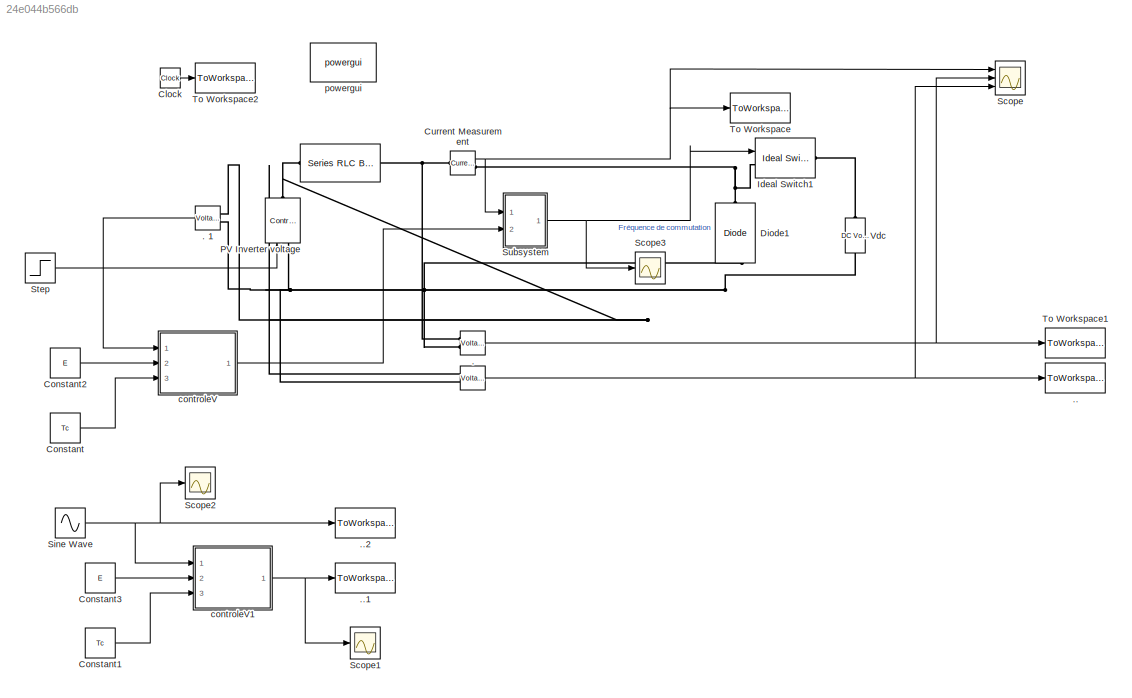
MODEL slx_24e044b566db
KIND model
CONFIG AbsTol = auto
CONFIG EnableMultiTasking = on
CONFIG FixedStep = pas_calcul
CONFIG MaxStep = auto
CONFIG MinStep = auto
CONFIG RelTol = 1e-3
CONFIG SampleTimeConstraint = Unconstrained
CONFIG Solver = ode1
CONFIG SolverName = ode1
CONFIG StartTime = 0.0
CONFIG StopTime = t_simul
BLOCK [Reference]     REF=powerlib/Elements/Series RLC Branch
  Ports = [0, 0, 0, 0, 0, 1, 1]
  SourceBlock = powerlib/Elements/Series RLC Branch
  SourceProductBaseCode = PS
  SourceProductName = Simscape Power Systems
  SourceType = Series RLC Branch
BLOCK [Reference]         REF=powerlib/Measurements/Voltage Measurement
  Ports = [0, 1, 0, 0, 0, 2]
  SourceBlock = powerlib/Measurements/Voltage Measurement
  SourceProductBaseCode = PS
  SourceProductName = Simscape Power Systems
  SourceType = Voltage Measurement
  UserDataPersistent = on
BLOCK [Reference] .     REF=powerlib/Measurements/Voltage Measurement
  Ports = [0, 1, 0, 0, 0, 2]
  SourceBlock = powerlib/Measurements/Voltage Measurement
  SourceProductBaseCode = PS
  SourceProductName = Simscape Power Systems
  SourceType = Voltage Measurement
  UserDataPersistent = on
BLOCK [Reference] .   1  REF=powerlib/Measurements/Voltage Measurement
  Ports = [0, 1, 0, 0, 0, 2]
  SourceBlock = powerlib/Measurements/Voltage Measurement
  SourceProductBaseCode = PS
  SourceProductName = Simscape Power Systems
  SourceType = Voltage Measurement
  UserDataPersistent = on
BLOCK [ToWorkspace] ..
  FixptAsFi = on
  MaxDataPoints = inf
  Ports = [1]
  SampleTime = -1
  Save2DSignal = 3-D array (concatenate along third dimension)
  VariableName = Vpv
BLOCK [ToWorkspace] ..1
  FixptAsFi = on
  MaxDataPoints = inf
  Ports = [1]
  SampleTime = -1
  Save2DSignal = 3-D array (concatenate along third dimension)
  VariableName = Ipv1
BLOCK [ToWorkspace] ..2
  FixptAsFi = on
  MaxDataPoints = inf
  Ports = [1]
  SampleTime = -1
  Save2DSignal = 3-D array (concatenate along third dimension)
  VariableName = Vpv1
BLOCK [Clock] Clock
  Decimation = 1
  DisplayTime = on
BLOCK [Constant] Constant
  SampleTime = -1
  Value = Tc
BLOCK [Constant] Constant1
  SampleTime = -1
  Value = Tc
BLOCK [Constant] Constant2
  SampleTime = -1
  Value = E
BLOCK [Constant] Constant3
  SampleTime = -1
  Value = E
BLOCK [Reference] Current Measurement  REF=powerlib/Measurements/Current Measurement
  Ports = [0, 1, 0, 0, 0, 1, 1]
  SourceBlock = powerlib/Measurements/Current Measurement
  SourceProductBaseCode = PS
  SourceProductName = Simscape Power Systems
  SourceType = Current Measurement
  UserDataPersistent = on
BLOCK [Reference] Diode1  REF=powerlib/Power
Electronics/Diode
  Ports = [0, 1, 0, 0, 0, 1, 1]
  SourceBlock = powerlib/Power\nElectronics/Diode
  SourceProductBaseCode = PS
  SourceProductName = Simscape Power Systems
  SourceType = Diode
BLOCK [Reference] Ideal Switch1  REF=powerlib/Power
Electronics/Ideal Switch
  Ports = [1, 0, 0, 0, 0, 1, 1]
  SourceBlock = powerlib/Power\nElectronics/Ideal Switch
  SourceProductBaseCode = PS
  SourceProductName = Simscape Power Systems
  SourceType = Ideal Switch
BLOCK [Reference] PV  Inverter voltage  REF=powerlib/Electrical
Sources/Controlled Voltage Source
  Ports = [1, 0, 0, 0, 0, 1, 1]
  SourceBlock = powerlib/Electrical\nSources/Controlled Voltage Source
  SourceProductBaseCode = PS
  SourceProductName = Simscape Power Systems
  SourceType = Controlled Voltage Source
BLOCK [Scope] Scope
  NumInputPorts = 3
  Ports = [3]
  ScopeSpecificationString = Simulink.scopes.TimeScopeBlockCfg('CurrentConfiguration', extmgr.ConfigurationSet(extmgr.Configuration('Core','General UI',true),extmgr.Configuration('Core','Source UI',true),extmgr.Configuration('Sources','WiredSimulink',true,'DataLoggingSaveFormat','Array','DataLoggingDecimation','1','DataLoggingDecimateData',true),extmgr.Configuration('Visuals','Time Domain',true,'SerializedDisplays',{struct('M...<+2902ch>
BLOCK [Scope] Scope1
  NumInputPorts = 1
  Ports = [1]
  ScopeSpecificationString = Simulink.scopes.TimeScopeBlockCfg('CurrentConfiguration', extmgr.ConfigurationSet(extmgr.Configuration('Core','General UI',true),extmgr.Configuration('Core','Source UI',true),extmgr.Configuration('Sources','WiredSimulink',true,'DataLoggingVariableName','ScopeData3'),extmgr.Configuration('Visuals','Time Domain',true,'SerializedDisplays',{struct('MinYLimReal','-0.66749','MaxYLimReal','6.00745','YLab...<+1394ch>
BLOCK [Scope] Scope2
  NumInputPorts = 1
  Ports = [1]
  ScopeSpecificationString = Simulink.scopes.TimeScopeBlockCfg('CurrentConfiguration', extmgr.ConfigurationSet(extmgr.Configuration('Core','General UI',true),extmgr.Configuration('Core','Source UI',true),extmgr.Configuration('Sources','WiredSimulink',true,'DataLoggingVariableName','ScopeData2'),extmgr.Configuration('Visuals','Time Domain',true,'SerializedDisplays',{struct('MinYLimReal','-3.05033','MaxYLimReal','27.45299','YLa...<+1372ch>
BLOCK [Scope] Scope3
  NumInputPorts = 1
  Ports = [1]
  ScopeSpecificationString = Simulink.scopes.TimeScopeBlockCfg('CurrentConfiguration', extmgr.ConfigurationSet(extmgr.Configuration('Core','General UI',true),extmgr.Configuration('Core','Source UI',true),extmgr.Configuration('Sources','WiredSimulink',true,'DataLoggingVariableName','ScopeData1'),extmgr.Configuration('Visuals','Time Domain',true,'SerializedDisplays',{struct('MinYLimReal','-0.125','MaxYLimReal','1.125','YLabelRe...<+1398ch>
BLOCK [Sin] Sine Wave
  Amplitude = -VpvREF-10
  Frequency = 1/t_simul
  Phase = -pi
  Ports = [0, 1]
  SampleTime = 0
BLOCK [Step] Step
  After = 0.9*VpvREF
  Before = VpvREF
  SampleTime = 0
  Time = 0.05
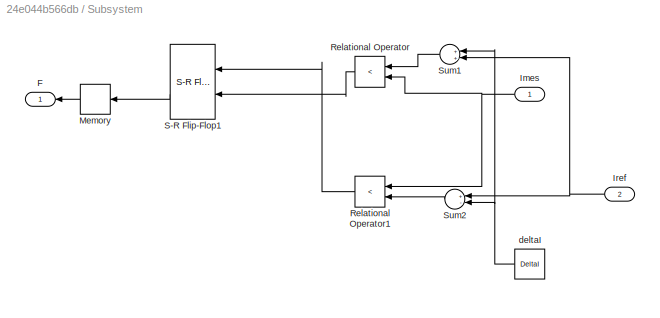
BLOCK [SubSystem] Subsystem
  Ports = [2, 1]
  RequestExecContextInheritance = off
  Variant = off
BLOCK [Outport] Subsystem/F
  IconDisplay = Port number
BLOCK [Inport] Subsystem/Imes
  IconDisplay = Port number
BLOCK [Inport] Subsystem/Iref
  IconDisplay = Port number
  Port = 2
BLOCK [Memory] Subsystem/Memory
  InheritSampleTime = on
BLOCK [RelationalOperator] Subsystem/Relational Operator
  InputSameDT = off
  Operator = <
  OutDataTypeStr = boolean
  Ports = [2, 1]
BLOCK [RelationalOperator] Subsystem/Relational Operator1
  InputSameDT = off
  Operator = <
  OutDataTypeStr = boolean
  Ports = [2, 1]
BLOCK [Reference] Subsystem/S-R Flip-Flop1  REF=simulink_extras/Flip Flops/S-R
Flip-Flop
  Ports = [2, 2]
  SourceBlock = simulink_extras/Flip Flops/S-R\nFlip-Flop
  SourceProductBaseCode = SL
  SourceProductName = Simulink
  SourceType = SRFlipFlop
BLOCK [Sum] Subsystem/Sum1
  InputSameDT = off
  OutDataTypeStr = Inherit: Inherit via internal rule
  Ports = [2, 1]
  SaturateOnIntegerOverflow = off
BLOCK [Sum] Subsystem/Sum2
  InputSameDT = off
  Inputs = +-
  OutDataTypeStr = Inherit: Inherit via internal rule
  Ports = [2, 1]
  SaturateOnIntegerOverflow = off
BLOCK [Constant] Subsystem/deltaI
  Value = DeltaI
BLOCK [ToWorkspace] To Workspace
  FixptAsFi = on
  MaxDataPoints = inf
  Ports = [1]
  SampleTime = -1
  Save2DSignal = 3-D array (concatenate along third dimension)
  VariableName = Ipv
BLOCK [ToWorkspace] To Workspace1
  FixptAsFi = on
  MaxDataPoints = inf
  Ports = [1]
  SampleTime = -1
  Save2DSignal = 3-D array (concatenate along third dimension)
  VariableName = Vm
BLOCK [ToWorkspace] To Workspace2
  FixptAsFi = on
  MaxDataPoints = inf
  Ports = [1]
  SampleTime = -1
  Save2DSignal = 3-D array (concatenate along third dimension)
  VariableName = t
BLOCK [Reference] Vdc  REF=powerlib/Electrical
Sources/DC Voltage Source
  Ports = [0, 0, 0, 0, 0, 1, 1]
  SourceBlock = powerlib/Electrical\nSources/DC Voltage Source
  SourceProductBaseCode = PS
  SourceProductName = Simscape Power Systems
  SourceType = DC Voltage Source
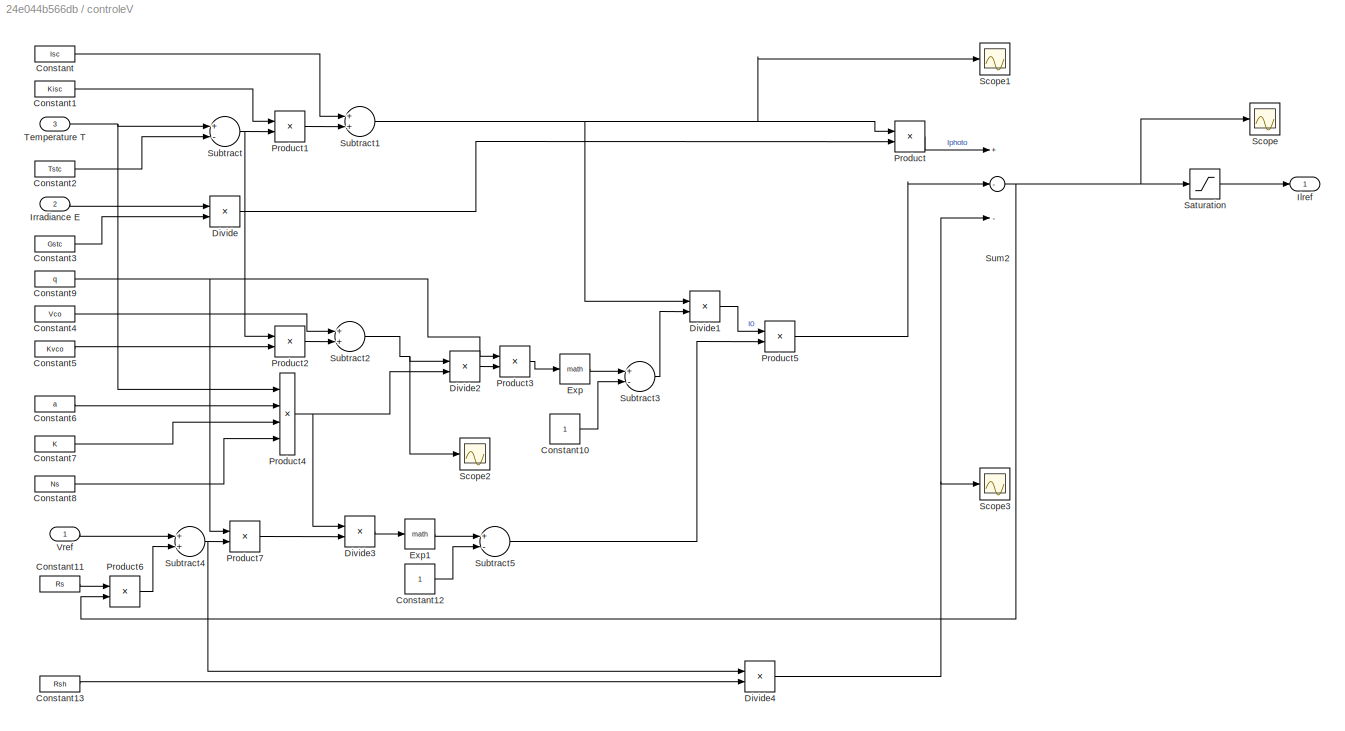
BLOCK [SubSystem] controleV
  Ports = [3, 1]
  RequestExecContextInheritance = off
  Variant = off
BLOCK [Constant] controleV/Constant
  SampleTime = -1
  Value = Isc
BLOCK [Constant] controleV/Constant1
  SampleTime = -1
  Value = Kisc
BLOCK [Constant] controleV/Constant10
  SampleTime = -1
BLOCK [Constant] controleV/Constant11
  SampleTime = -1
  Value = Rs
BLOCK [Constant] controleV/Constant12
  SampleTime = -1
BLOCK [Constant] controleV/Constant13
  SampleTime = -1
  Value = Rsh
BLOCK [Constant] controleV/Constant2
  SampleTime = -1
  Value = Tstc
BLOCK [Constant] controleV/Constant3
  SampleTime = -1
  Value = Gstc
BLOCK [Constant] controleV/Constant4
  SampleTime = -1
  Value = Vco
BLOCK [Constant] controleV/Constant5
  SampleTime = -1
  Value = Kvco
BLOCK [Constant] controleV/Constant6
  SampleTime = -1
  Value = a
BLOCK [Constant] controleV/Constant7
  SampleTime = -1
  Value = K
BLOCK [Constant] controleV/Constant8
  SampleTime = -1
  Value = Ns
BLOCK [Constant] controleV/Constant9
  SampleTime = -1
  Value = q
BLOCK [Product] controleV/Divide
  InputSameDT = off
  Inputs = */
  OutDataTypeStr = Inherit: Inherit via internal rule
  Ports = [2, 1]
  RndMeth = Floor
  SaturateOnIntegerOverflow = off
BLOCK [Product] controleV/Divide1
  InputSameDT = off
  Inputs = */
  OutDataTypeStr = Inherit: Inherit via internal rule
  Ports = [2, 1]
  RndMeth = Floor
  SaturateOnIntegerOverflow = off
BLOCK [Product] controleV/Divide2
  InputSameDT = off
  Inputs = */
  OutDataTypeStr = Inherit: Inherit via internal rule
  Ports = [2, 1]
  RndMeth = Floor
  SaturateOnIntegerOverflow = off
BLOCK [Product] controleV/Divide3
  InputSameDT = off
  Inputs = /*
  OutDataTypeStr = Inherit: Inherit via internal rule
  Ports = [2, 1]
  RndMeth = Floor
  SaturateOnIntegerOverflow = off
BLOCK [Product] controleV/Divide4
  InputSameDT = off
  Inputs = */
  OutDataTypeStr = Inherit: Inherit via internal rule
  Ports = [2, 1]
  RndMeth = Floor
  SaturateOnIntegerOverflow = off
BLOCK [Math] controleV/Exp
  Ports = [1, 1]
BLOCK [Math] controleV/Exp1
  Ports = [1, 1]
BLOCK [Outport] controleV/Ilref
  IconDisplay = Port number
BLOCK [Inport] controleV/Irradiance E
  IconDisplay = Port number
  Port = 2
BLOCK [Product] controleV/Product
  InputSameDT = off
  OutDataTypeStr = Inherit: Inherit via internal rule
  Ports = [2, 1]
  RndMeth = Floor
  SaturateOnIntegerOverflow = off
BLOCK [Product] controleV/Product1
  InputSameDT = off
  OutDataTypeStr = Inherit: Inherit via internal rule
  Ports = [2, 1]
  RndMeth = Floor
  SaturateOnIntegerOverflow = off
BLOCK [Product] controleV/Product2
  InputSameDT = off
  OutDataTypeStr = Inherit: Inherit via internal rule
  Ports = [2, 1]
  RndMeth = Floor
  SaturateOnIntegerOverflow = off
BLOCK [Product] controleV/Product3
  InputSameDT = off
  OutDataTypeStr = Inherit: Inherit via internal rule
  Ports = [2, 1]
  RndMeth = Floor
  SaturateOnIntegerOverflow = off
BLOCK [Product] controleV/Product4
  InputSameDT = off
  Inputs = 4
  OutDataTypeStr = Inherit: Inherit via internal rule
  Ports = [4, 1]
  RndMeth = Floor
  SaturateOnIntegerOverflow = off
BLOCK [Product] controleV/Product5
  InputSameDT = off
  OutDataTypeStr = Inherit: Inherit via internal rule
  Ports = [2, 1]
  RndMeth = Floor
  SaturateOnIntegerOverflow = off
BLOCK [Product] controleV/Product6
  InputSameDT = off
  OutDataTypeStr = Inherit: Inherit via internal rule
  Ports = [2, 1]
  RndMeth = Floor
  SaturateOnIntegerOverflow = off
BLOCK [Product] controleV/Product7
  InputSameDT = off
  OutDataTypeStr = Inherit: Inherit via internal rule
  Ports = [2, 1]
  RndMeth = Floor
  SaturateOnIntegerOverflow = off
BLOCK [Saturate] controleV/Saturation
  InputPortMap = u0
  LowerLimit = 0
  Ports = [1, 1]
  UpperLimit = 150
BLOCK [Scope] controleV/Scope
  NumInputPorts = 1
  Ports = [1]
  ScopeSpecificationString = Simulink.scopes.TimeScopeBlockCfg('CurrentConfiguration', extmgr.ConfigurationSet(extmgr.Configuration('Core','General UI',true),extmgr.Configuration('Core','Source UI',true),extmgr.Configuration('Sources','WiredSimulink',true,'DataLoggingVariableName','ScopeData1'),extmgr.Configuration('Visuals','Time Domain',true,'SerializedDisplays',{struct('MinYLimReal','-0.15983','MaxYLimReal','4.76439','YLab...<+1439ch>
BLOCK [Scope] controleV/Scope1
  NumInputPorts = 1
  Ports = [1]
  ScopeSpecificationString = Simulink.scopes.TimeScopeBlockCfg('CurrentConfiguration', extmgr.ConfigurationSet(extmgr.Configuration('Core','General UI',true),extmgr.Configuration('Core','Source UI',true),extmgr.Configuration('Sources','WiredSimulink',true,'DataLoggingVariableName','ScopeData3'),extmgr.Configuration('Visuals','Time Domain',true,'SerializedDisplays',{struct('MinYLimReal','2.56','MaxYLimReal','4.56','YLabelReal'...<+1371ch>
BLOCK [Scope] controleV/Scope2
  NumInputPorts = 1
  Ports = [1]
  ScopeSpecificationString = Simulink.scopes.TimeScopeBlockCfg('CurrentConfiguration', extmgr.ConfigurationSet(extmgr.Configuration('Core','General UI',true),extmgr.Configuration('Core','Source UI',true),extmgr.Configuration('Sources','WiredSimulink',true,'DataLoggingVariableName','ScopeData4'),extmgr.Configuration('Visuals','Time Domain',true,'SerializedDisplays',{struct('MinYLimReal','33.74','MaxYLimReal','53.74','YLabelRea...<+1451ch>
BLOCK [Scope] controleV/Scope3
  NumInputPorts = 1
  Ports = [1]
  ScopeSpecificationString = Simulink.scopes.TimeScopeBlockCfg('CurrentConfiguration', extmgr.ConfigurationSet(extmgr.Configuration('Core','General UI',true),extmgr.Configuration('Core','Source UI',true),extmgr.Configuration('Sources','WiredSimulink',true,'DataLoggingVariableName','ScopeData1'),extmgr.Configuration('Visuals','Time Domain',true,'SerializedDisplays',{struct('MinYLimReal','-0.000022015823873428','MaxYLimReal','-...<+1571ch>
BLOCK [Sum] controleV/Subtract
  InputSameDT = off
  Inputs = +-
  OutDataTypeStr = Inherit: Inherit via internal rule
  Ports = [2, 1]
  SaturateOnIntegerOverflow = off
BLOCK [Sum] controleV/Subtract1
  InputSameDT = off
  OutDataTypeStr = Inherit: Inherit via internal rule
  Ports = [2, 1]
  SaturateOnIntegerOverflow = off
BLOCK [Sum] controleV/Subtract2
  InputSameDT = off
  OutDataTypeStr = Inherit: Inherit via internal rule
  Ports = [2, 1]
  SaturateOnIntegerOverflow = off
BLOCK [Sum] controleV/Subtract3
  InputSameDT = off
  Inputs = +-
  OutDataTypeStr = Inherit: Inherit via internal rule
  Ports = [2, 1]
  SaturateOnIntegerOverflow = off
BLOCK [Sum] controleV/Subtract4
  InputSameDT = off
  OutDataTypeStr = Inherit: Inherit via internal rule
  Ports = [2, 1]
  SaturateOnIntegerOverflow = off
BLOCK [Sum] controleV/Subtract5
  InputSameDT = off
  Inputs = +-
  OutDataTypeStr = Inherit: Inherit via internal rule
  Ports = [2, 1]
  SaturateOnIntegerOverflow = off
BLOCK [Sum] controleV/Sum2
  Inputs = +--
  Ports = [3, 1]
BLOCK [Inport] controleV/Temperature T
  IconDisplay = Port number
  Port = 3
BLOCK [Inport] controleV/Vref 
  IconDisplay = Port number
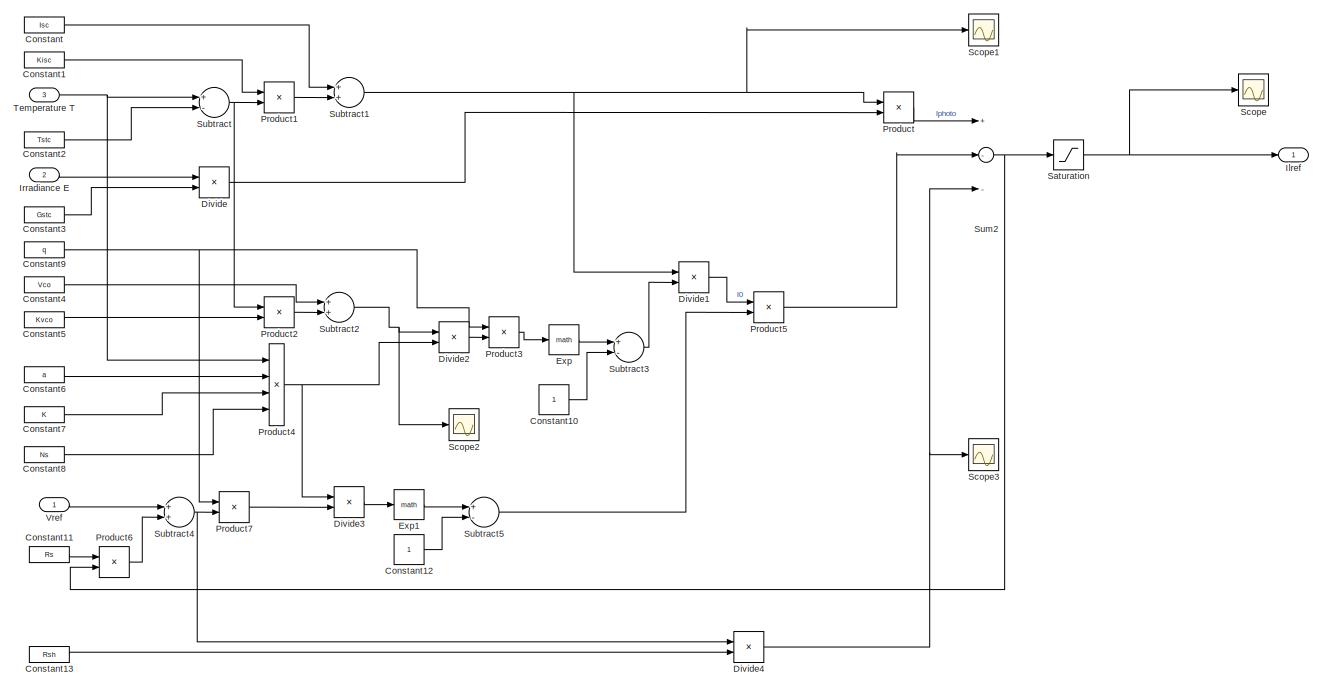
[diagram: controleV1 - part 1/2, most of the canvas]
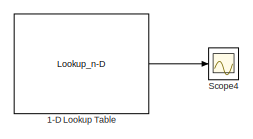
[diagram: controleV1 - part 2/2, top left region]
BLOCK [SubSystem] controleV1
  Ports = [3, 1]
  RequestExecContextInheritance = off
  Variant = off
BLOCK [Lookup_n-D] controleV1/1-D Lookup Table
  BreakpointsForDimension1 = [0,0.0024,0.0048,0.0072,0.0096,0.012,0.0144,0.0168,0.0192,0.0216,0.024,0.0264,0.0288,0.0312,0.0336,0.036,0.0384,0.0406,0.0432,0.0456,0.048,0.0504,0.0528,0.0552,0.0576,0.06,0.0624,0.0648,0.0672,0.0696,0.072,0.0744,0.0768,0.0792,0.0816,0.084,0.0864,0.0888,0.0912,0.0936,0.096,0.1]
  InternalRulePriority = Speed
  NumberOfTableDimensions = 1
  Ports = [1, 1]
  RndMeth = Simplest
  Table = [0,0.5,1,1.5,2,2.5,3,3.5,4,4.5,5,5.5,6,6.5,7,7.5,8,8.5,9,9.5,10,10.5,11,11.5,12,12.5,13,13.5,14,14.5,15,15.5,16,16.5,17,17.5,18,18.5,19,19.5,20,20.5]
BLOCK [Constant] controleV1/Constant
  SampleTime = -1
  Value = Isc
BLOCK [Constant] controleV1/Constant1
  SampleTime = -1
  Value = Kisc
BLOCK [Constant] controleV1/Constant10
  SampleTime = -1
BLOCK [Constant] controleV1/Constant11
  SampleTime = -1
  Value = Rs
BLOCK [Constant] controleV1/Constant12
  SampleTime = -1
BLOCK [Constant] controleV1/Constant13
  SampleTime = -1
  Value = Rsh
BLOCK [Constant] controleV1/Constant2
  SampleTime = -1
  Value = Tstc
BLOCK [Constant] controleV1/Constant3
  SampleTime = -1
  Value = Gstc
BLOCK [Constant] controleV1/Constant4
  SampleTime = -1
  Value = Vco
BLOCK [Constant] controleV1/Constant5
  SampleTime = -1
  Value = Kvco
BLOCK [Constant] controleV1/Constant6
  SampleTime = -1
  Value = a
BLOCK [Constant] controleV1/Constant7
  SampleTime = -1
  Value = K
BLOCK [Constant] controleV1/Constant8
  SampleTime = -1
  Value = Ns
BLOCK [Constant] controleV1/Constant9
  SampleTime = -1
  Value = q
BLOCK [Product] controleV1/Divide
  InputSameDT = off
  Inputs = */
  OutDataTypeStr = Inherit: Inherit via internal rule
  Ports = [2, 1]
  RndMeth = Floor
  SaturateOnIntegerOverflow = off
BLOCK [Product] controleV1/Divide1
  InputSameDT = off
  Inputs = */
  OutDataTypeStr = Inherit: Inherit via internal rule
  Ports = [2, 1]
  RndMeth = Floor
  SaturateOnIntegerOverflow = off
BLOCK [Product] controleV1/Divide2
  InputSameDT = off
  Inputs = */
  OutDataTypeStr = Inherit: Inherit via internal rule
  Ports = [2, 1]
  RndMeth = Floor
  SaturateOnIntegerOverflow = off
BLOCK [Product] controleV1/Divide3
  InputSameDT = off
  Inputs = /*
  OutDataTypeStr = Inherit: Inherit via internal rule
  Ports = [2, 1]
  RndMeth = Floor
  SaturateOnIntegerOverflow = off
BLOCK [Product] controleV1/Divide4
  InputSameDT = off
  Inputs = */
  OutDataTypeStr = Inherit: Inherit via internal rule
  Ports = [2, 1]
  RndMeth = Floor
  SaturateOnIntegerOverflow = off
BLOCK [Math] controleV1/Exp
  Ports = [1, 1]
BLOCK [Math] controleV1/Exp1
  Ports = [1, 1]
BLOCK [Outport] controleV1/Ilref
  IconDisplay = Port number
BLOCK [Inport] controleV1/Irradiance E
  IconDisplay = Port number
  Port = 2
BLOCK [Product] controleV1/Product
  InputSameDT = off
  OutDataTypeStr = Inherit: Inherit via internal rule
  Ports = [2, 1]
  RndMeth = Floor
  SaturateOnIntegerOverflow = off
BLOCK [Product] controleV1/Product1
  InputSameDT = off
  OutDataTypeStr = Inherit: Inherit via internal rule
  Ports = [2, 1]
  RndMeth = Floor
  SaturateOnIntegerOverflow = off
BLOCK [Product] controleV1/Product2
  InputSameDT = off
  OutDataTypeStr = Inherit: Inherit via internal rule
  Ports = [2, 1]
  RndMeth = Floor
  SaturateOnIntegerOverflow = off
BLOCK [Product] controleV1/Product3
  InputSameDT = off
  OutDataTypeStr = Inherit: Inherit via internal rule
  Ports = [2, 1]
  RndMeth = Floor
  SaturateOnIntegerOverflow = off
BLOCK [Product] controleV1/Product4
  InputSameDT = off
  Inputs = 4
  OutDataTypeStr = Inherit: Inherit via internal rule
  Ports = [4, 1]
  RndMeth = Floor
  SaturateOnIntegerOverflow = off
BLOCK [Product] controleV1/Product5
  InputSameDT = off
  OutDataTypeStr = Inherit: Inherit via internal rule
  Ports = [2, 1]
  RndMeth = Floor
  SaturateOnIntegerOverflow = off
BLOCK [Product] controleV1/Product6
  InputSameDT = off
  OutDataTypeStr = Inherit: Inherit via internal rule
  Ports = [2, 1]
  RndMeth = Floor
  SaturateOnIntegerOverflow = off
BLOCK [Product] controleV1/Product7
  InputSameDT = off
  OutDataTypeStr = Inherit: Inherit via internal rule
  Ports = [2, 1]
  RndMeth = Floor
  SaturateOnIntegerOverflow = off
BLOCK [Saturate] controleV1/Saturation
  InputPortMap = u0
  LowerLimit = 0
  Ports = [1, 1]
  UpperLimit = 150
BLOCK [Scope] controleV1/Scope
  NumInputPorts = 1
  Ports = [1]
  ScopeSpecificationString = Simulink.scopes.TimeScopeBlockCfg('CurrentConfiguration', extmgr.ConfigurationSet(extmgr.Configuration('Core','General UI',true),extmgr.Configuration('Core','Source UI',true),extmgr.Configuration('Sources','WiredSimulink',true,'DataLoggingVariableName','ScopeData1'),extmgr.Configuration('Visuals','Time Domain',true,'SerializedDisplays',{struct('MinYLimReal','-0.15983','MaxYLimReal','4.76439','YLab...<+1439ch>
BLOCK [Scope] controleV1/Scope1
  NumInputPorts = 1
  Ports = [1]
  ScopeSpecificationString = Simulink.scopes.TimeScopeBlockCfg('CurrentConfiguration', extmgr.ConfigurationSet(extmgr.Configuration('Core','General UI',true),extmgr.Configuration('Core','Source UI',true),extmgr.Configuration('Sources','WiredSimulink',true,'DataLoggingVariableName','ScopeData3'),extmgr.Configuration('Visuals','Time Domain',true,'SerializedDisplays',{struct('MinYLimReal','2.56','MaxYLimReal','4.56','YLabelReal'...<+1371ch>
BLOCK [Scope] controleV1/Scope2
  NumInputPorts = 1
  Ports = [1]
  ScopeSpecificationString = Simulink.scopes.TimeScopeBlockCfg('CurrentConfiguration', extmgr.ConfigurationSet(extmgr.Configuration('Core','General UI',true),extmgr.Configuration('Core','Source UI',true),extmgr.Configuration('Sources','WiredSimulink',true,'DataLoggingVariableName','ScopeData4'),extmgr.Configuration('Visuals','Time Domain',true,'SerializedDisplays',{struct('MinYLimReal','33.74','MaxYLimReal','53.74','YLabelRea...<+1451ch>
BLOCK [Scope] controleV1/Scope3
  NumInputPorts = 1
  Ports = [1]
  ScopeSpecificationString = Simulink.scopes.TimeScopeBlockCfg('CurrentConfiguration', extmgr.ConfigurationSet(extmgr.Configuration('Core','General UI',true),extmgr.Configuration('Core','Source UI',true),extmgr.Configuration('Sources','WiredSimulink',true,'DataLoggingVariableName','ScopeData1'),extmgr.Configuration('Visuals','Time Domain',true,'SerializedDisplays',{struct('MinYLimReal','-0.000022015823873428','MaxYLimReal','-...<+1571ch>
BLOCK [Scope] controleV1/Scope4
  NumInputPorts = 1
  Ports = [1]
  ScopeSpecificationString = Simulink.scopes.TimeScopeBlockCfg('CurrentConfiguration', extmgr.ConfigurationSet(extmgr.Configuration('Core','General UI',true),extmgr.Configuration('Core','Source UI',true),extmgr.Configuration('Sources','WiredSimulink',true,'DataLoggingVariableName','ScopeData3'),extmgr.Configuration('Visuals','Time Domain',true,'SerializedDisplays',{struct('MinYLimReal','-0.00028','MaxYLimReal','0.00016','YLab...<+1446ch>
BLOCK [Sum] controleV1/Subtract
  InputSameDT = off
  Inputs = +-
  OutDataTypeStr = Inherit: Inherit via internal rule
  Ports = [2, 1]
  SaturateOnIntegerOverflow = off
BLOCK [Sum] controleV1/Subtract1
  InputSameDT = off
  OutDataTypeStr = Inherit: Inherit via internal rule
  Ports = [2, 1]
  SaturateOnIntegerOverflow = off
BLOCK [Sum] controleV1/Subtract2
  InputSameDT = off
  OutDataTypeStr = Inherit: Inherit via internal rule
  Ports = [2, 1]
  SaturateOnIntegerOverflow = off
BLOCK [Sum] controleV1/Subtract3
  InputSameDT = off
  Inputs = +-
  OutDataTypeStr = Inherit: Inherit via internal rule
  Ports = [2, 1]
  SaturateOnIntegerOverflow = off
BLOCK [Sum] controleV1/Subtract4
  InputSameDT = off
  OutDataTypeStr = Inherit: Inherit via internal rule
  Ports = [2, 1]
  SaturateOnIntegerOverflow = off
BLOCK [Sum] controleV1/Subtract5
  InputSameDT = off
  Inputs = +-
  OutDataTypeStr = Inherit: Inherit via internal rule
  Ports = [2, 1]
  SaturateOnIntegerOverflow = off
BLOCK [Sum] controleV1/Sum2
  Inputs = +--
  Ports = [3, 1]
BLOCK [Inport] controleV1/Temperature T
  IconDisplay = Port number
  Port = 3
BLOCK [Inport] controleV1/Vref 
  IconDisplay = Port number
BLOCK [Reference] powergui  REF=powerlib/powergui
  Ports = []
  Priority = 1
  SourceBlock = powerlib/powergui
  SourceProductBaseCode = PS
  SourceProductName = Simscape Power Systems
  SourceType = PSB option menu block
NET       :1 -> ..:1, Scope:3
LINE .   1:1 -> controleV:1
NET .   :1 -> Scope:2, To Workspace1:1
LINE Clock:1 -> To Workspace2:1
LINE Constant1:1 -> controleV1:3
LINE Constant2:1 -> controleV:2
LINE Constant3:1 -> controleV1:2
LINE Constant:1 -> controleV:3
NET Current Measurement:1 -> Scope:1, Subsystem:1, To Workspace:1
NET Sine Wave:1 -> ..2:1, Scope2:1, controleV1:1
LINE Step:1 -> PV  Inverter voltage:1
NET Subsystem/Imes:1 -> Subsystem/Relational Operator1:1, Subsystem/Relational Operator:2
NET Subsystem/Iref:1 -> Subsystem/Sum1:2, Subsystem/Sum2:1
LINE Subsystem/Memory:1 -> Subsystem/F:1
LINE Subsystem/Relational Operator1:1 -> Subsystem/S-R Flip-Flop1:1
LINE Subsystem/Relational Operator:1 -> Subsystem/S-R Flip-Flop1:2
LINE Subsystem/S-R Flip-Flop1:2 -> Subsystem/Memory:1
LINE Subsystem/Sum1:1 -> Subsystem/Relational Operator:1
LINE Subsystem/Sum2:1 -> Subsystem/Relational Operator1:2
NET Subsystem/deltaI:1 -> Subsystem/Sum1:1, Subsystem/Sum2:2
NET Subsystem:1 -> Ideal Switch1:1, Scope3:1
LINE controleV/Constant10:1 -> controleV/Subtract3:2
LINE controleV/Constant11:1 -> controleV/Product6:1
LINE controleV/Constant12:1 -> controleV/Subtract5:2
LINE controleV/Constant13:1 -> controleV/Divide4:2
LINE controleV/Constant1:1 -> controleV/Product1:1
LINE controleV/Constant2:1 -> controleV/Subtract:2
LINE controleV/Constant3:1 -> controleV/Divide:2
LINE controleV/Constant4:1 -> controleV/Subtract2:1
LINE controleV/Constant5:1 -> controleV/Product2:2
LINE controleV/Constant6:1 -> controleV/Product4:2
LINE controleV/Constant7:1 -> controleV/Product4:3
LINE controleV/Constant8:1 -> controleV/Product4:4
NET controleV/Constant9:1 -> controleV/Product3:1, controleV/Product7:1
LINE controleV/Constant:1 -> controleV/Subtract1:1
LINE controleV/Divide1:1 -> controleV/Product5:1
LINE controleV/Divide2:1 -> controleV/Product3:2
LINE controleV/Divide3:1 -> controleV/Exp1:1
NET controleV/Divide4:1 -> controleV/Scope3:1, controleV/Sum2:3
LINE controleV/Divide:1 -> controleV/Product:2
LINE controleV/Exp1:1 -> controleV/Subtract5:1
LINE controleV/Exp:1 -> controleV/Subtract3:1
LINE controleV/Irradiance E:1 -> controleV/Divide:1
LINE controleV/Product1:1 -> controleV/Subtract1:2
LINE controleV/Product2:1 -> controleV/Subtract2:2
LINE controleV/Product3:1 -> controleV/Exp:1
NET controleV/Product4:1 -> controleV/Divide2:2, controleV/Divide3:1
LINE controleV/Product5:1 -> controleV/Sum2:2
LINE controleV/Product6:1 -> controleV/Subtract4:2
LINE controleV/Product7:1 -> controleV/Divide3:2
LINE controleV/Product:1 -> controleV/Sum2:1
LINE controleV/Saturation:1 -> controleV/Ilref:1
NET controleV/Subtract1:1 -> controleV/Divide1:1, controleV/Product:1, controleV/Scope1:1
NET controleV/Subtract2:1 -> controleV/Divide2:1, controleV/Scope2:1
LINE controleV/Subtract3:1 -> controleV/Divide1:2
NET controleV/Subtract4:1 -> controleV/Divide4:1, controleV/Product7:2
LINE controleV/Subtract5:1 -> controleV/Product5:2
NET controleV/Subtract:1 -> controleV/Product1:2, controleV/Product2:1
NET controleV/Sum2:1 -> controleV/Product6:2, controleV/Saturation:1, controleV/Scope:1
NET controleV/Temperature T:1 -> controleV/Product4:1, controleV/Subtract:1
LINE controleV/Vref :1 -> controleV/Subtract4:1
LINE controleV1/1-D Lookup Table:1 -> controleV1/Scope4:1
LINE controleV1/Constant10:1 -> controleV1/Subtract3:2
LINE controleV1/Constant11:1 -> controleV1/Product6:1
LINE controleV1/Constant12:1 -> controleV1/Subtract5:2
LINE controleV1/Constant13:1 -> controleV1/Divide4:2
LINE controleV1/Constant1:1 -> controleV1/Product1:1
LINE controleV1/Constant2:1 -> controleV1/Subtract:2
LINE controleV1/Constant3:1 -> controleV1/Divide:2
LINE controleV1/Constant4:1 -> controleV1/Subtract2:1
LINE controleV1/Constant5:1 -> controleV1/Product2:2
LINE controleV1/Constant6:1 -> controleV1/Product4:2
LINE controleV1/Constant7:1 -> controleV1/Product4:3
LINE controleV1/Constant8:1 -> controleV1/Product4:4
NET controleV1/Constant9:1 -> controleV1/Product3:1, controleV1/Product7:1
LINE controleV1/Constant:1 -> controleV1/Subtract1:1
LINE controleV1/Divide1:1 -> controleV1/Product5:1
LINE controleV1/Divide2:1 -> controleV1/Product3:2
LINE controleV1/Divide3:1 -> controleV1/Exp1:1
NET controleV1/Divide4:1 -> controleV1/Scope3:1, controleV1/Sum2:3
LINE controleV1/Divide:1 -> controleV1/Product:2
LINE controleV1/Exp1:1 -> controleV1/Subtract5:1
LINE controleV1/Exp:1 -> controleV1/Subtract3:1
LINE controleV1/Irradiance E:1 -> controleV1/Divide:1
LINE controleV1/Product1:1 -> controleV1/Subtract1:2
LINE controleV1/Product2:1 -> controleV1/Subtract2:2
LINE controleV1/Product3:1 -> controleV1/Exp:1
NET controleV1/Product4:1 -> controleV1/Divide2:2, controleV1/Divide3:1
LINE controleV1/Product5:1 -> controleV1/Sum2:2
LINE controleV1/Product6:1 -> controleV1/Subtract4:2
LINE controleV1/Product7:1 -> controleV1/Divide3:2
LINE controleV1/Product:1 -> controleV1/Sum2:1
NET controleV1/Saturation:1 -> controleV1/Ilref:1, controleV1/Scope:1
NET controleV1/Subtract1:1 -> controleV1/Divide1:1, controleV1/Product:1, controleV1/Scope1:1
NET controleV1/Subtract2:1 -> controleV1/Divide2:1, controleV1/Scope2:1
LINE controleV1/Subtract3:1 -> controleV1/Divide1:2
NET controleV1/Subtract4:1 -> controleV1/Divide4:1, controleV1/Product7:2
LINE controleV1/Subtract5:1 -> controleV1/Product5:2
NET controleV1/Subtract:1 -> controleV1/Product1:2, controleV1/Product2:1
NET controleV1/Sum2:1 -> controleV1/Product6:2, controleV1/Saturation:1
NET controleV1/Temperature T:1 -> controleV1/Product4:1, controleV1/Subtract:1
LINE controleV1/Vref :1 -> controleV1/Subtract4:1
NET controleV1:1 -> ..1:1, Scope1:1
LINE controleV:1 -> Subsystem:2
PNET net1:       :LConn1 --   :LConn1 -- .   1:LConn1 -- PV  Inverter voltage:RConn1
PNET net2:       :LConn2 -- .   1:LConn2 -- .   :LConn2 -- Diode1:RConn1 -- PV  Inverter voltage:LConn1 -- Vdc:LConn1
PNET net3:   :RConn1 -- .   :LConn1 -- Current Measurement:LConn1
PNET net4: Current Measurement:RConn1 -- Diode1:LConn1 -- Ideal Switch1:LConn1
PLINE Ideal Switch1:RConn1 -- Vdc:RConn1
note: NET lines group one-source signal fan-out (src -> all destinations, sorted); 1:1 wires keep LINE; PNET lines group multi-terminal physical nets as a canonical sorted terminal list (undirected conserving connections); 2-terminal nets keep the pairwise PLINE form
